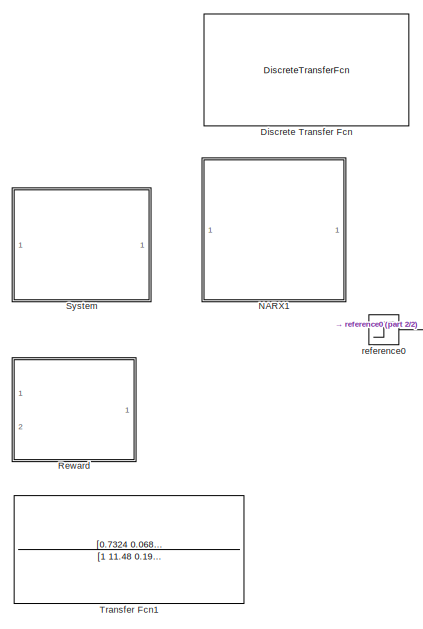
[diagram: root canvas - part 1/2, left side, full height]
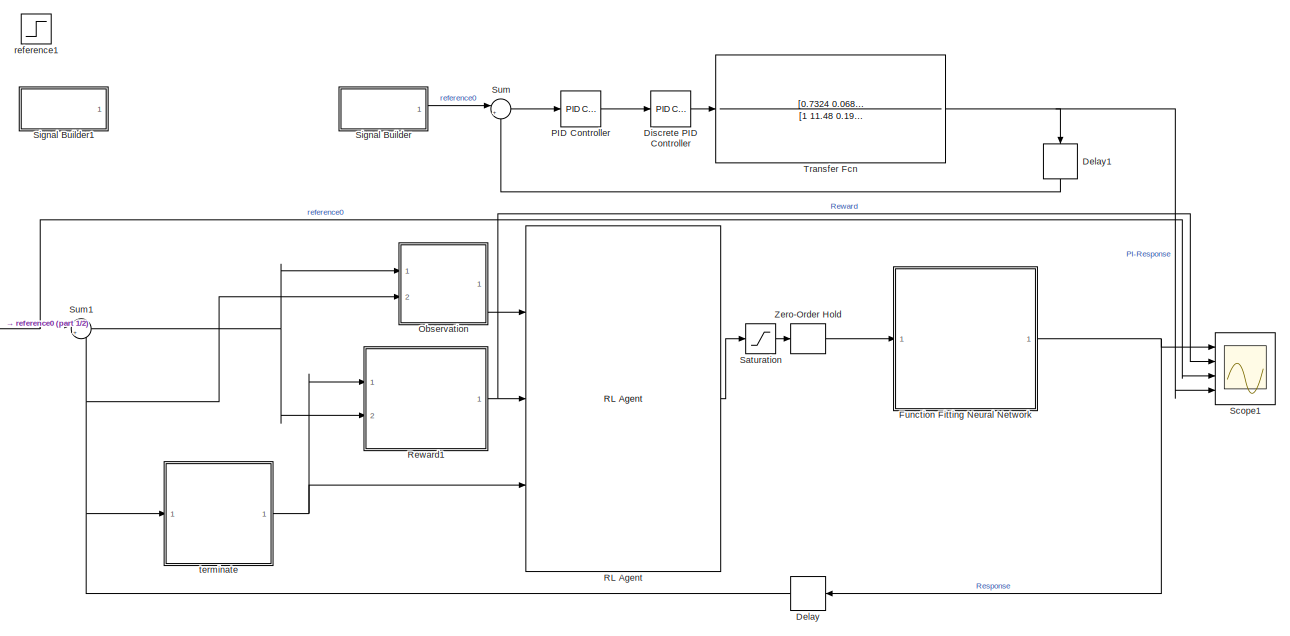
[diagram: root canvas - part 2/2, most of the canvas]
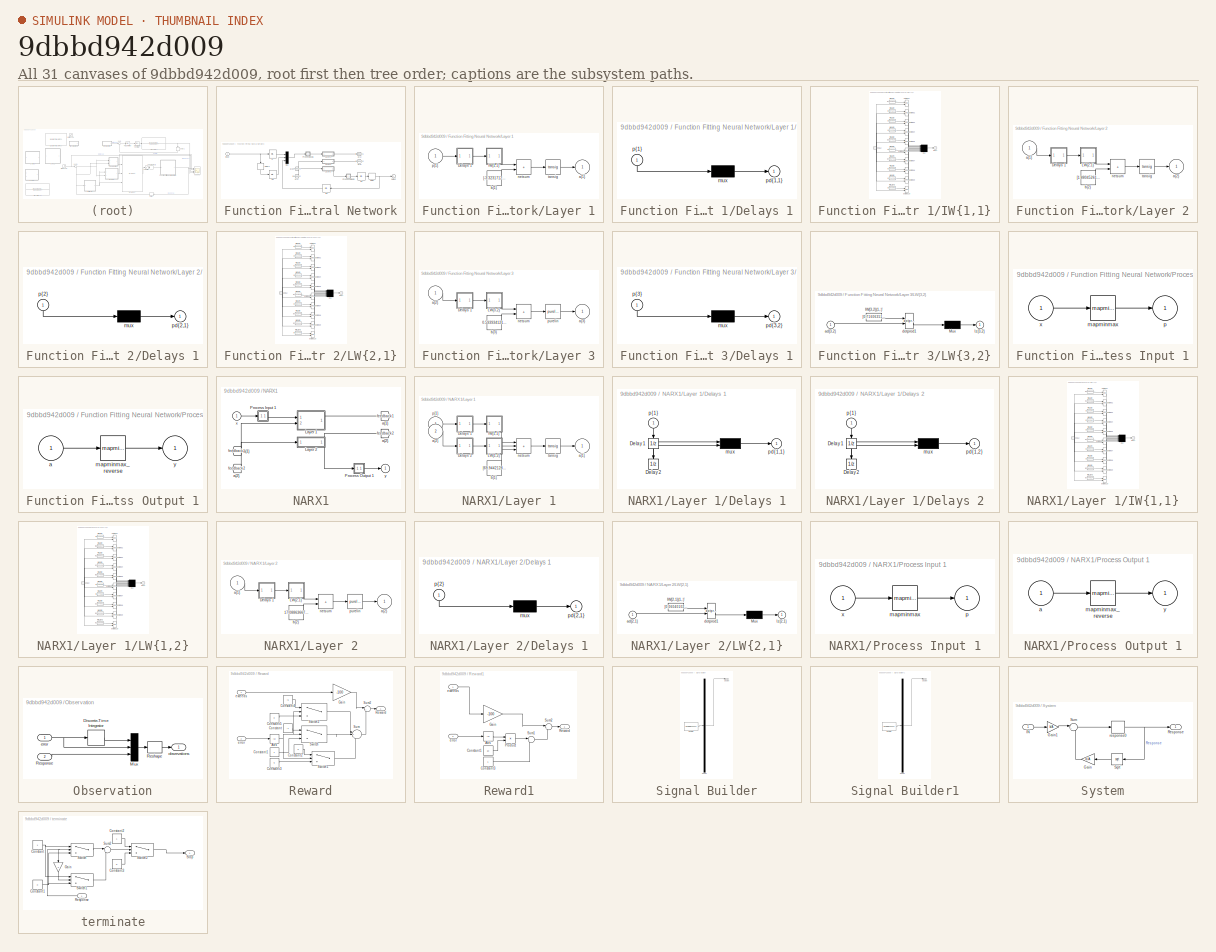
[diagram: thumbnail index - all 31 canvases of the model, root first then tree order]
MODEL slx_9dbbd942d009
KIND model
CONFIG AbsTol = auto
CONFIG EnableMultiTasking = off
CONFIG FixedStep = auto
CONFIG MaxStep = auto
CONFIG MinStep = auto
CONFIG RelTol = 1e-3
CONFIG SampleTimeConstraint = Unconstrained
CONFIG SolverName = VariableStepAuto
CONFIG StartTime = 0.0
CONFIG StopTime = 600
BLOCK [Delay] Delay
  Commented = through
  DelayLength = 1
  InitialCondition = 0
  InputPortMap = u0
  NameLocation = top
  Ports = [1, 1]
BLOCK [Delay] Delay1
  Commented = through
  DelayLength = 1
  InitialCondition = 0
  InputPortMap = u0
  NameLocation = left
  Ports = [1, 1]
BLOCK [Reference] Discrete PID Controller  REF=pid_lib/PID Controller
  Commented = through
  Ports = [1, 1]
  SourceBlock = pid_lib/PID Controller
  SourceProductBaseCode = SL
  SourceType = PID 1dof
BLOCK [DiscreteTransferFcn] Discrete Transfer Fcn
  Commented = on
  Denominator = [1 -1.998 0.9981]
  InputPortMap = u0
  Numerator = [0.2466 -0.4926 0.246]
  Ports = [1, 1]
BLOCK [SubSystem] Function Fitting Neural Network
  Ports = [1, 1]
  RequestExecContextInheritance = off
BLOCK [From] Function Fitting Neural Network/ a{1} 
  GotoTag = feedback1
BLOCK [From] Function Fitting Neural Network/ a{2} 
  GotoTag = feedback2
BLOCK [Delay] Function Fitting Neural Network/Delay
  DelayLength = 1
  InitialCondition = 0
  InputPortMap = u0
  Ports = [1, 1]
  SampleTime = 0.01
BLOCK [Delay] Function Fitting Neural Network/Delay1
  DelayLength = 1
  InitialCondition = 0
  InputPortMap = u0
  NameLocation = left
  Ports = [1, 1]
  SampleTime = 0.01
BLOCK [InitialCondition] Function Fitting Neural Network/IC
  Value = 0
BLOCK [InitialCondition] Function Fitting Neural Network/IC1
  Value = 0
BLOCK [InitialCondition] Function Fitting Neural Network/IC2
  Value = 0
BLOCK [InitialCondition] Function Fitting Neural Network/IC3
  Value = 0
BLOCK [Inport] Function Fitting Neural Network/Input
  PortDimensions = 1
  SampleTime = 0.01
BLOCK [SubSystem] Function Fitting Neural Network/Layer 1
  Ports = [1, 1]
  RequestExecContextInheritance = off
BLOCK [SubSystem] Function Fitting Neural Network/Layer 1/Delays 1
  Ports = [1, 1]
  RequestExecContextInheritance = off
BLOCK [Mux] Function Fitting Neural Network/Layer 1/Delays 1/mux
  Inputs = 1
  Ports = [1, 1]
BLOCK [Outport] Function Fitting Neural Network/Layer 1/Delays 1/pd{1,1}
BLOCK [Inport] Function Fitting Neural Network/Layer 1/Delays 1/p{1}
  NameLocation = left
  PortDimensions = 3
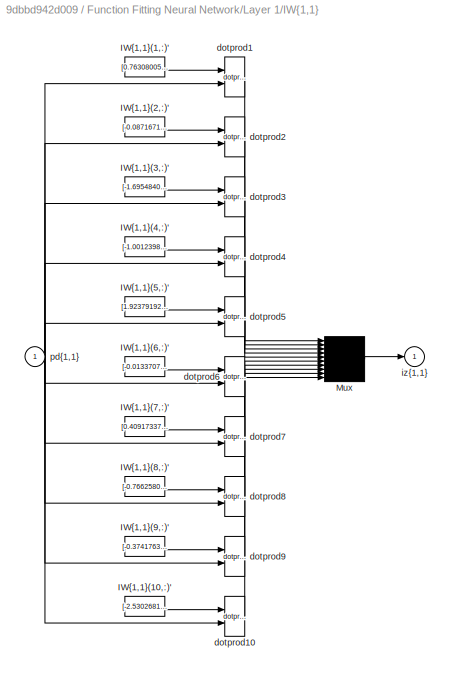
BLOCK [SubSystem] Function Fitting Neural Network/Layer 1/IW{1,1}
  Ports = [1, 1]
  RequestExecContextInheritance = off
BLOCK [Constant] Function Fitting Neural Network/Layer 1/IW{1,1}/IW{1,1}(1,:)'
  Value = [0.76308005848581805796726484913961030542850494384765625;2.331129027010572229983154102228581905364990234375;-1.219157590374229105378844906226731836795806884765625]
BLOCK [Constant] Function Fitting Neural Network/Layer 1/IW{1,1}/IW{1,1}(10,:)'
  Value = [-2.530268142481658433240454542101360857486724853515625;-0.175956236565314949604754701795172877609729766845703125;1.613170541124292700629894170560874044895172119140625]
BLOCK [Constant] Function Fitting Neural Network/Layer 1/IW{1,1}/IW{1,1}(2,:)'
  Value = [-0.0871671904955077236909488647143007256090641021728515625;2.734618928218120803563806475722230970859527587890625;-1.3565065948938954676350476802326738834381103515625]
BLOCK [Constant] Function Fitting Neural Network/Layer 1/IW{1,1}/IW{1,1}(3,:)'
  Value = [-1.6954840839414908604254605961614288389682769775390625;-1.579406776655639443873724303557537496089935302734375;0.17864859693195700440782047735410742461681365966796875]
BLOCK [Constant] Function Fitting Neural Network/Layer 1/IW{1,1}/IW{1,1}(4,:)'
  Value = [-1.0012398768876435983798955930978991091251373291015625;2.14863863294177104279469858738593757152557373046875;-2.0987808137777097527987280045635998249053955078125]
BLOCK [Constant] Function Fitting Neural Network/Layer 1/IW{1,1}/IW{1,1}(5,:)'
  Value = [1.9237919281852844388680523479706607758998870849609375;-1.7403728403510447808599792551831342279911041259765625;1.721653946918123789799892620067112147808074951171875]
BLOCK [Constant] Function Fitting Neural Network/Layer 1/IW{1,1}/IW{1,1}(6,:)'
  Value = [-0.013370784898292499554006695916541502811014652252197265625;-1.1387625806332095645956314911018125712871551513671875;2.749398164377189868190498600597493350505828857421875]
BLOCK [Constant] Function Fitting Neural Network/Layer 1/IW{1,1}/IW{1,1}(7,:)'
  Value = [0.409173374963759883815583862087805755436420440673828125;1.5683506735410503996064335296978242695331573486328125;2.2115795245398874868669736315496265888214111328125]
BLOCK [Constant] Function Fitting Neural Network/Layer 1/IW{1,1}/IW{1,1}(8,:)'
  Value = [-0.76625805888344877825346657118643634021282196044921875;1.4057415575137051089171791318221949040889739990234375;2.499082941115704503687311444082297384738922119140625]
BLOCK [Constant] Function Fitting Neural Network/Layer 1/IW{1,1}/IW{1,1}(9,:)'
  Value = [-0.37417630130996137882704033472691662609577178955078125;1.677153534919636257427555392496287822723388671875;2.426733731128155824308123555965721607208251953125]
BLOCK [Mux] Function Fitting Neural Network/Layer 1/IW{1,1}/Mux
  Inputs = 10
  Ports = [10, 1]
BLOCK [Reference] Function Fitting Neural Network/Layer 1/IW{1,1}/dotprod1  REF=neural/Weight Functions/dotprod
  Ports = [2, 1]
  SourceBlock = neural/Weight Functions/dotprod
  SourceProductBaseCode = NN
  SourceType = DOTPROD
BLOCK [Reference] Function Fitting Neural Network/Layer 1/IW{1,1}/dotprod10  REF=neural/Weight Functions/dotprod
  Ports = [2, 1]
  SourceBlock = neural/Weight Functions/dotprod
  SourceProductBaseCode = NN
  SourceType = DOTPROD
BLOCK [Reference] Function Fitting Neural Network/Layer 1/IW{1,1}/dotprod2  REF=neural/Weight Functions/dotprod
  Ports = [2, 1]
  SourceBlock = neural/Weight Functions/dotprod
  SourceProductBaseCode = NN
  SourceType = DOTPROD
BLOCK [Reference] Function Fitting Neural Network/Layer 1/IW{1,1}/dotprod3  REF=neural/Weight Functions/dotprod
  Ports = [2, 1]
  SourceBlock = neural/Weight Functions/dotprod
  SourceProductBaseCode = NN
  SourceType = DOTPROD
BLOCK [Reference] Function Fitting Neural Network/Layer 1/IW{1,1}/dotprod4  REF=neural/Weight Functions/dotprod
  Ports = [2, 1]
  SourceBlock = neural/Weight Functions/dotprod
  SourceProductBaseCode = NN
  SourceType = DOTPROD
BLOCK [Reference] Function Fitting Neural Network/Layer 1/IW{1,1}/dotprod5  REF=neural/Weight Functions/dotprod
  Ports = [2, 1]
  SourceBlock = neural/Weight Functions/dotprod
  SourceProductBaseCode = NN
  SourceType = DOTPROD
BLOCK [Reference] Function Fitting Neural Network/Layer 1/IW{1,1}/dotprod6  REF=neural/Weight Functions/dotprod
  Ports = [2, 1]
  SourceBlock = neural/Weight Functions/dotprod
  SourceProductBaseCode = NN
  SourceType = DOTPROD
BLOCK [Reference] Function Fitting Neural Network/Layer 1/IW{1,1}/dotprod7  REF=neural/Weight Functions/dotprod
  Ports = [2, 1]
  SourceBlock = neural/Weight Functions/dotprod
  SourceProductBaseCode = NN
  SourceType = DOTPROD
BLOCK [Reference] Function Fitting Neural Network/Layer 1/IW{1,1}/dotprod8  REF=neural/Weight Functions/dotprod
  Ports = [2, 1]
  SourceBlock = neural/Weight Functions/dotprod
  SourceProductBaseCode = NN
  SourceType = DOTPROD
BLOCK [Reference] Function Fitting Neural Network/Layer 1/IW{1,1}/dotprod9  REF=neural/Weight Functions/dotprod
  Ports = [2, 1]
  SourceBlock = neural/Weight Functions/dotprod
  SourceProductBaseCode = NN
  SourceType = DOTPROD
BLOCK [Outport] Function Fitting Neural Network/Layer 1/IW{1,1}/iz{1,1}
BLOCK [Inport] Function Fitting Neural Network/Layer 1/IW{1,1}/pd{1,1}
  PortDimensions = 3
BLOCK [Outport] Function Fitting Neural Network/Layer 1/a{1}
  InitialOutput = [0;0;0;0;0;0;0;0;0;0]
BLOCK [Constant] Function Fitting Neural Network/Layer 1/b{1}
  Value = [-3.32317120964137924232773002586327493190765380859375;2.2446469778311541887205748935230076313018798828125;1.950955147266907108161149153602309525012969970703125;0.8095038230191542449887265320285223424434661865234375;-0.7611095009019883672607420521671883761882781982421875;0.07852743333964208594100142590832547284662723541259765625;0.88425621149313038404926601288025267422199249267578125;-1.4713434644...<+149ch>
BLOCK [Sum] Function Fitting Neural Network/Layer 1/netsum
  IconShape = rectangular
  InputSameDT = on
  Inputs = 2
  OutDataTypeStr = Inherit: Same as first input
  Ports = [2, 1]
  SaturateOnIntegerOverflow = on
BLOCK [Inport] Function Fitting Neural Network/Layer 1/p{1}
  PortDimensions = 3
BLOCK [Reference] Function Fitting Neural Network/Layer 1/tansig  REF=neural/Transfer Functions/tansig
  Ports = [1, 1]
  SourceBlock = neural/Transfer Functions/tansig
  SourceProductBaseCode = NN
  SourceType = TANSIG
BLOCK [SubSystem] Function Fitting Neural Network/Layer 2
  Ports = [1, 1]
  RequestExecContextInheritance = off
BLOCK [SubSystem] Function Fitting Neural Network/Layer 2/Delays 1
  Ports = [1, 1]
  RequestExecContextInheritance = off
BLOCK [Mux] Function Fitting Neural Network/Layer 2/Delays 1/mux
  Inputs = 1
  Ports = [1, 1]
BLOCK [Outport] Function Fitting Neural Network/Layer 2/Delays 1/pd{2,1}
BLOCK [Inport] Function Fitting Neural Network/Layer 2/Delays 1/p{2}
  NameLocation = left
  PortDimensions = 10
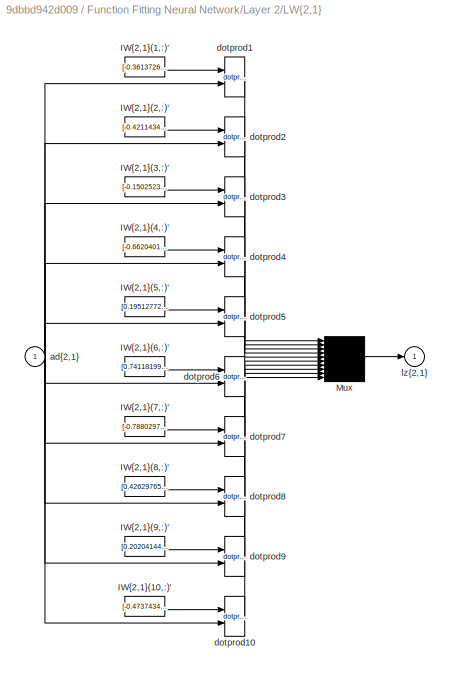
BLOCK [SubSystem] Function Fitting Neural Network/Layer 2/LW{2,1}
  Ports = [1, 1]
  RequestExecContextInheritance = off
BLOCK [Constant] Function Fitting Neural Network/Layer 2/LW{2,1}/IW{2,1}(1,:)'
  Value = [-0.361372677485969850952329807114438153803348541259765625;0.67719110819569772186099498867406509816646575927734375;1.19305429881698810135048915981315076351165771484375;0.63555020225388236809749287203885614871978759765625;-0.41725996480287930179287059218040667474269866943359375;-0.1842634835225147316162264132799464277923107147216796875;0.25927120905881528845071670730249024927616119384765625;0.32756...<+163ch>
BLOCK [Constant] Function Fitting Neural Network/Layer 2/LW{2,1}/IW{2,1}(10,:)'
  Value = [-0.473743425051872169007083357428200542926788330078125;-0.4817305058320331401233715951093472540378570556640625;-0.63004113616201795622373538208194077014923095703125;0.47607349036696311461724917535320855677127838134765625;-0.047544561604513042862851790459899348206818103790283203125;0.490769453529584065432089801106485538184642791748046875;0.4260205672105803476057417356059886515140533447265625;0.549...<+162ch>
BLOCK [Constant] Function Fitting Neural Network/Layer 2/LW{2,1}/IW{2,1}(2,:)'
  Value = [-0.42114345826561760954831470371573232114315032958984375;0.6057281376406269401968529564328491687774658203125;-0.61266683787086806400878913336782716214656829833984375;-0.433431431412366341415776105350232683122158050537109375;0.78080293809539202953828862519003450870513916015625;0.59030976767809961724964296081452630460262298583984375;0.2192688839724912241990750771947205066680908203125;-0.68226666314...<+153ch>
BLOCK [Constant] Function Fitting Neural Network/Layer 2/LW{2,1}/IW{2,1}(3,:)'
  Value = [-0.150252318040917709485171371852629818022251129150390625;-0.480883619268649920019953469818574376404285430908203125;0.94238709691332778195516084451810456812381744384765625;0.03550966489384276003615781291955499909818172454833984375;0.7300788364290979881587873023818247020244598388671875;0.1176216402484356604585258310180506668984889984130859375;-0.401744634761386887333856066106818616390228271484375;...<+168ch>
BLOCK [Constant] Function Fitting Neural Network/Layer 2/LW{2,1}/IW{2,1}(4,:)'
  Value = [-0.66204014823959556057531017358996905386447906494140625;-0.48914851415149429580964124397723935544490814208984375;-0.40217675618992376751492656694608740508556365966796875;1.051642374679273128634804379544220864772796630859375;0.93642459241617237442056875806883908808231353759765625;-0.288796721395234434748289231720264069736003875732421875;-1.0701628055197514033380912223947234451770782470703125;0.59...<+168ch>
BLOCK [Constant] Function Fitting Neural Network/Layer 2/LW{2,1}/IW{2,1}(5,:)'
  Value = [0.195127724074421582400873376172967255115509033203125;-0.205220306502168436946220708705368451774120330810546875;-0.48311911353640935029574166037491522729396820068359375;0.5038681928501731466241153611917980015277862548828125;-0.287889835010906980361511386945494450628757476806640625;-0.36391885696840997610479462309740483760833740234375;0.1340510091504848733112709169290610589087009429931640625;-0.24...<+166ch>
BLOCK [Constant] Function Fitting Neural Network/Layer 2/LW{2,1}/IW{2,1}(6,:)'
  Value = [0.74118199691908082105129551564459688961505889892578125;0.438439117883960560728695554644218645989894866943359375;0.43983092511804022795018909164355136454105377197265625;-0.5046640580805912268402835252345539629459381103515625;-0.44614783400604840490899505311972461640834808349609375;1.17282633451863471663045856985263526439666748046875;0.7000716784095974976054321814444847404956817626953125;-0.821314...<+159ch>
BLOCK [Constant] Function Fitting Neural Network/Layer 2/LW{2,1}/IW{2,1}(7,:)'
  Value = [-0.788029711880435801418798291706480085849761962890625;-0.046624773853757579822332246521909837611019611358642578125;0.63756488409840350595203517514164559543132781982421875;0.36915016330318672910237864925875328481197357177734375;0.3165324469049248801155727051082067191600799560546875;0.93369756315451457595600004424341022968292236328125;-0.13883436686219863265279172992450185120105743408203125;-0.265...<+162ch>
BLOCK [Constant] Function Fitting Neural Network/Layer 2/LW{2,1}/IW{2,1}(8,:)'
  Value = [0.42629765884171122447554580503492616117000579833984375;-0.65802845872813586769467519843601621687412261962890625;-0.489615664581000864519211290826206095516681671142578125;-0.81649347865293775416972721359343267977237701416015625;1.17060755180161546462613841868005692958831787109375;0.32850553846790553347290142482961528003215789794921875;0.07068889799727122447148275341533008031547069549560546875;-0....<+167ch>
BLOCK [Constant] Function Fitting Neural Network/Layer 2/LW{2,1}/IW{2,1}(9,:)'
  Value = [0.202041442808746862791480225496343336999416351318359375;0.65598328234685288062877361880964599549770355224609375;0.709897337672340089653744144015945494174957275390625;-0.71718003247800277133450208566500805318355560302734375;0.1636167709903677547345068887807428836822509765625;0.6048789823356852668467809053254313766956329345703125;0.1563035293008135095949029391704243607819080352783203125;-0.7857909...<+161ch>
BLOCK [Mux] Function Fitting Neural Network/Layer 2/LW{2,1}/Mux
  Inputs = 10
  Ports = [10, 1]
BLOCK [Inport] Function Fitting Neural Network/Layer 2/LW{2,1}/ad{2,1}
  PortDimensions = 10
BLOCK [Reference] Function Fitting Neural Network/Layer 2/LW{2,1}/dotprod1  REF=neural/Weight Functions/dotprod
  Ports = [2, 1]
  SourceBlock = neural/Weight Functions/dotprod
  SourceProductBaseCode = NN
  SourceType = DOTPROD
BLOCK [Reference] Function Fitting Neural Network/Layer 2/LW{2,1}/dotprod10  REF=neural/Weight Functions/dotprod
  Ports = [2, 1]
  SourceBlock = neural/Weight Functions/dotprod
  SourceProductBaseCode = NN
  SourceType = DOTPROD
BLOCK [Reference] Function Fitting Neural Network/Layer 2/LW{2,1}/dotprod2  REF=neural/Weight Functions/dotprod
  Ports = [2, 1]
  SourceBlock = neural/Weight Functions/dotprod
  SourceProductBaseCode = NN
  SourceType = DOTPROD
BLOCK [Reference] Function Fitting Neural Network/Layer 2/LW{2,1}/dotprod3  REF=neural/Weight Functions/dotprod
  Ports = [2, 1]
  SourceBlock = neural/Weight Functions/dotprod
  SourceProductBaseCode = NN
  SourceType = DOTPROD
BLOCK [Reference] Function Fitting Neural Network/Layer 2/LW{2,1}/dotprod4  REF=neural/Weight Functions/dotprod
  Ports = [2, 1]
  SourceBlock = neural/Weight Functions/dotprod
  SourceProductBaseCode = NN
  SourceType = DOTPROD
BLOCK [Reference] Function Fitting Neural Network/Layer 2/LW{2,1}/dotprod5  REF=neural/Weight Functions/dotprod
  Ports = [2, 1]
  SourceBlock = neural/Weight Functions/dotprod
  SourceProductBaseCode = NN
  SourceType = DOTPROD
BLOCK [Reference] Function Fitting Neural Network/Layer 2/LW{2,1}/dotprod6  REF=neural/Weight Functions/dotprod
  Ports = [2, 1]
  SourceBlock = neural/Weight Functions/dotprod
  SourceProductBaseCode = NN
  SourceType = DOTPROD
BLOCK [Reference] Function Fitting Neural Network/Layer 2/LW{2,1}/dotprod7  REF=neural/Weight Functions/dotprod
  Ports = [2, 1]
  SourceBlock = neural/Weight Functions/dotprod
  SourceProductBaseCode = NN
  SourceType = DOTPROD
BLOCK [Reference] Function Fitting Neural Network/Layer 2/LW{2,1}/dotprod8  REF=neural/Weight Functions/dotprod
  Ports = [2, 1]
  SourceBlock = neural/Weight Functions/dotprod
  SourceProductBaseCode = NN
  SourceType = DOTPROD
BLOCK [Reference] Function Fitting Neural Network/Layer 2/LW{2,1}/dotprod9  REF=neural/Weight Functions/dotprod
  Ports = [2, 1]
  SourceBlock = neural/Weight Functions/dotprod
  SourceProductBaseCode = NN
  SourceType = DOTPROD
BLOCK [Outport] Function Fitting Neural Network/Layer 2/LW{2,1}/lz{2,1}
BLOCK [Inport] Function Fitting Neural Network/Layer 2/a{1} 
  PortDimensions = 10
BLOCK [Outport] Function Fitting Neural Network/Layer 2/a{2}
  InitialOutput = [0;0;0;0;0;0;0;0;0;0]
BLOCK [Constant] Function Fitting Neural Network/Layer 2/b{2}
  Value = [1.8804526134724282027121944338432513177394866943359375;1.3205349681522078331141756279976107180118560791015625;0.9753787988005970799321175945806317031383514404296875;0.5672657615136900144392484435229562222957611083984375;-0.210322896549077598127297505925525911152362823486328125;0.1358507638572668818621735908891423605382442474365234375;-0.489729462581783570040983022408909164369106292724609375;0.797...<+162ch>
BLOCK [Sum] Function Fitting Neural Network/Layer 2/netsum
  IconShape = rectangular
  InputSameDT = on
  Inputs = 2
  OutDataTypeStr = Inherit: Same as first input
  Ports = [2, 1]
  SaturateOnIntegerOverflow = on
BLOCK [Reference] Function Fitting Neural Network/Layer 2/tansig  REF=neural/Transfer Functions/tansig
  Ports = [1, 1]
  SourceBlock = neural/Transfer Functions/tansig
  SourceProductBaseCode = NN
  SourceType = TANSIG
BLOCK [SubSystem] Function Fitting Neural Network/Layer 3
  Ports = [1, 1]
  RequestExecContextInheritance = off
BLOCK [SubSystem] Function Fitting Neural Network/Layer 3/Delays 1
  Ports = [1, 1]
  RequestExecContextInheritance = off
BLOCK [Mux] Function Fitting Neural Network/Layer 3/Delays 1/mux
  Inputs = 1
  Ports = [1, 1]
BLOCK [Outport] Function Fitting Neural Network/Layer 3/Delays 1/pd{3,2}
BLOCK [Inport] Function Fitting Neural Network/Layer 3/Delays 1/p{3}
  NameLocation = left
  PortDimensions = 10
BLOCK [SubSystem] Function Fitting Neural Network/Layer 3/LW{3,2}
  Ports = [1, 1]
  RequestExecContextInheritance = off
BLOCK [Constant] Function Fitting Neural Network/Layer 3/LW{3,2}/IW{3,2}(1,:)'
  Value = [0.71606351843164384174400538540794514119625091552734375;-0.94002037830654916472639115454512648284435272216796875;-0.08063993282818197882999555758942733518779277801513671875;0.28658478434985534821777264369302429258823394775390625;-0.265830819598041834250778947534854523837566375732421875;0.50160638320664230338508104978245683014392852783203125;-0.39883762940942829589019424929574597626924514770507812...<+177ch>
BLOCK [Mux] Function Fitting Neural Network/Layer 3/LW{3,2}/Mux
  Inputs = 1
  Ports = [1, 1]
BLOCK [Inport] Function Fitting Neural Network/Layer 3/LW{3,2}/ad{3,2}
  PortDimensions = 10
BLOCK [Reference] Function Fitting Neural Network/Layer 3/LW{3,2}/dotprod1  REF=neural/Weight Functions/dotprod
  Ports = [2, 1]
  SourceBlock = neural/Weight Functions/dotprod
  SourceProductBaseCode = NN
  SourceType = DOTPROD
BLOCK [Outport] Function Fitting Neural Network/Layer 3/LW{3,2}/lz{3,2}
BLOCK [Inport] Function Fitting Neural Network/Layer 3/a{2} 
  PortDimensions = 10
BLOCK [Outport] Function Fitting Neural Network/Layer 3/a{3}
  InitialOutput = 0
BLOCK [Constant] Function Fitting Neural Network/Layer 3/b{3}
  Value = 0.5939341216611018214877049103961326181888580322265625
BLOCK [Sum] Function Fitting Neural Network/Layer 3/netsum
  IconShape = rectangular
  InputSameDT = on
  Inputs = 2
  OutDataTypeStr = Inherit: Same as first input
  Ports = [2, 1]
  SaturateOnIntegerOverflow = on
BLOCK [Reference] Function Fitting Neural Network/Layer 3/purelin  REF=neural/Transfer Functions/purelin
  Ports = [1, 1]
  SourceBlock = neural/Transfer Functions/purelin
  SourceProductBaseCode = NN
  SourceType = PURELIN
BLOCK [Mux] Function Fitting Neural Network/Mux
  DisplayOption = bar
  Inputs = 3
  Ports = [3, 1]
BLOCK [Outport] Function Fitting Neural Network/Output
  InitialOutput = 0
BLOCK [SubSystem] Function Fitting Neural Network/Process Input 1
  Ports = [1, 1]
  RequestExecContextInheritance = off
BLOCK [Reference] Function Fitting Neural Network/Process Input 1/mapminmax  REF=neural/Processing Functions/mapminmax
  Ports = [1, 1]
  SourceBlock = neural/Processing Functions/mapminmax
  SourceProductBaseCode = NN
  SourceType = MAPMINMAX Preprocess
BLOCK [Outport] Function Fitting Neural Network/Process Input 1/p
  PortDimensions = 3
BLOCK [Inport] Function Fitting Neural Network/Process Input 1/x
  PortDimensions = 3
BLOCK [SubSystem] Function Fitting Neural Network/Process Output 1
  Ports = [1, 1]
  RequestExecContextInheritance = off
BLOCK [Inport] Function Fitting Neural Network/Process Output 1/a
  PortDimensions = 1
BLOCK [Reference] Function Fitting Neural Network/Process Output 1/mapminmax_reverse  REF=neural/Processing Functions/mapminmax_reverse
  Ports = [1, 1]
  SourceBlock = neural/Processing Functions/mapminmax_reverse
  SourceProductBaseCode = NN
  SourceType = MAPMINMAX Reverse Process
BLOCK [Outport] Function Fitting Neural Network/Process Output 1/y
  PortDimensions = 1
BLOCK [Goto] Function Fitting Neural Network/a{1}
  GotoTag = feedback1
BLOCK [Goto] Function Fitting Neural Network/a{2}
  GotoTag = feedback2
BLOCK [SubSystem] NARX1
  Commented = on
  Ports = [1, 1]
  RequestExecContextInheritance = off
BLOCK [From] NARX1/ a{1} 
  GotoTag = feedback1
BLOCK [From] NARX1/ a{2} 
  GotoTag = feedback2
BLOCK [SubSystem] NARX1/Layer 1
  Ports = [2, 1]
  RequestExecContextInheritance = off
BLOCK [SubSystem] NARX1/Layer 1/Delays 1
  Ports = [1, 1]
  RequestExecContextInheritance = off
BLOCK [UnitDelay] NARX1/Layer 1/Delays 1/Delay 1
  InitialCondition = pi_input_1_delayed_1
  NameLocation = left
  SampleTime = 0.01
BLOCK [UnitDelay] NARX1/Layer 1/Delays 1/Delay 2
  InitialCondition = pi_input_1_delayed_2
  NameLocation = left
  SampleTime = 0.01
BLOCK [Mux] NARX1/Layer 1/Delays 1/mux
  Inputs = 2
  Ports = [2, 1]
BLOCK [Outport] NARX1/Layer 1/Delays 1/pd{1,1}
BLOCK [Inport] NARX1/Layer 1/Delays 1/p{1}
  NameLocation = left
  PortDimensions = 1
  SampleTime = 0.01
BLOCK [SubSystem] NARX1/Layer 1/Delays 2
  Ports = [1, 1]
  RequestExecContextInheritance = off
BLOCK [UnitDelay] NARX1/Layer 1/Delays 2/Delay 1
  InitialCondition = ai_layer_2_delayed_1
  NameLocation = left
  SampleTime = 0.01
BLOCK [UnitDelay] NARX1/Layer 1/Delays 2/Delay 2
  InitialCondition = ai_layer_2_delayed_2
  NameLocation = left
  SampleTime = 0.01
BLOCK [Mux] NARX1/Layer 1/Delays 2/mux
  Inputs = 2
  Ports = [2, 1]
BLOCK [Outport] NARX1/Layer 1/Delays 2/pd{1,2}
BLOCK [Inport] NARX1/Layer 1/Delays 2/p{1}
  NameLocation = left
  PortDimensions = 1
  SampleTime = 0.01
BLOCK [SubSystem] NARX1/Layer 1/IW{1,1}
  Ports = [1, 1]
  RequestExecContextInheritance = off
BLOCK [Constant] NARX1/Layer 1/IW{1,1}/IW{1,1}(1,:)'
  Value = [29.03903226635674883482352015562355518341064453125;41.44948441657512461233636713586747646331787109375]
BLOCK [Constant] NARX1/Layer 1/IW{1,1}/IW{1,1}(10,:)'
  Value = [0.7675824761955245545408388352370820939540863037109375;-1.1687055017099490239473880137666128575801849365234375]
BLOCK [Constant] NARX1/Layer 1/IW{1,1}/IW{1,1}(2,:)'
  Value = [0.2390355624880793061759476358929532580077648162841796875;-0.431926298184111823186270839869393967092037200927734375]
BLOCK [Constant] NARX1/Layer 1/IW{1,1}/IW{1,1}(3,:)'
  Value = [-10.161651163492148697287120739929378032684326171875;11.3341168636576146155903188628144562244415283203125]
BLOCK [Constant] NARX1/Layer 1/IW{1,1}/IW{1,1}(4,:)'
  Value = [-21.302867640969935791872558183968067169189453125;25.13980283393106418543538893572986125946044921875]
BLOCK [Constant] NARX1/Layer 1/IW{1,1}/IW{1,1}(5,:)'
  Value = [-19.303986729564780233658893848769366741180419921875;132.186706804042984231273294426500797271728515625]
BLOCK [Constant] NARX1/Layer 1/IW{1,1}/IW{1,1}(6,:)'
  Value = [1.24605412948472338285910154809243977069854736328125;-1.4330989075176490121776851083268411457538604736328125]
BLOCK [Constant] NARX1/Layer 1/IW{1,1}/IW{1,1}(7,:)'
  Value = [-0.1399246287369722840931984819690114818513393402099609375;0.31427409306866971316907211075886152684688568115234375]
BLOCK [Constant] NARX1/Layer 1/IW{1,1}/IW{1,1}(8,:)'
  Value = [-19.325065952917437783753484836779534816741943359375;22.96748770829365327017512754537165164947509765625]
BLOCK [Constant] NARX1/Layer 1/IW{1,1}/IW{1,1}(9,:)'
  Value = [9.3486555172812675351678990409709513187408447265625;-7.227440486947561026909170323051512241363525390625]
BLOCK [Mux] NARX1/Layer 1/IW{1,1}/Mux
  Inputs = 10
  Ports = [10, 1]
BLOCK [Reference] NARX1/Layer 1/IW{1,1}/dotprod1  REF=neural/Weight Functions/dotprod
  Ports = [2, 1]
  SourceBlock = neural/Weight Functions/dotprod
  SourceProductBaseCode = NN
  SourceType = DOTPROD
BLOCK [Reference] NARX1/Layer 1/IW{1,1}/dotprod10  REF=neural/Weight Functions/dotprod
  Ports = [2, 1]
  SourceBlock = neural/Weight Functions/dotprod
  SourceProductBaseCode = NN
  SourceType = DOTPROD
BLOCK [Reference] NARX1/Layer 1/IW{1,1}/dotprod2  REF=neural/Weight Functions/dotprod
  Ports = [2, 1]
  SourceBlock = neural/Weight Functions/dotprod
  SourceProductBaseCode = NN
  SourceType = DOTPROD
BLOCK [Reference] NARX1/Layer 1/IW{1,1}/dotprod3  REF=neural/Weight Functions/dotprod
  Ports = [2, 1]
  SourceBlock = neural/Weight Functions/dotprod
  SourceProductBaseCode = NN
  SourceType = DOTPROD
BLOCK [Reference] NARX1/Layer 1/IW{1,1}/dotprod4  REF=neural/Weight Functions/dotprod
  Ports = [2, 1]
  SourceBlock = neural/Weight Functions/dotprod
  SourceProductBaseCode = NN
  SourceType = DOTPROD
BLOCK [Reference] NARX1/Layer 1/IW{1,1}/dotprod5  REF=neural/Weight Functions/dotprod
  Ports = [2, 1]
  SourceBlock = neural/Weight Functions/dotprod
  SourceProductBaseCode = NN
  SourceType = DOTPROD
BLOCK [Reference] NARX1/Layer 1/IW{1,1}/dotprod6  REF=neural/Weight Functions/dotprod
  Ports = [2, 1]
  SourceBlock = neural/Weight Functions/dotprod
  SourceProductBaseCode = NN
  SourceType = DOTPROD
BLOCK [Reference] NARX1/Layer 1/IW{1,1}/dotprod7  REF=neural/Weight Functions/dotprod
  Ports = [2, 1]
  SourceBlock = neural/Weight Functions/dotprod
  SourceProductBaseCode = NN
  SourceType = DOTPROD
BLOCK [Reference] NARX1/Layer 1/IW{1,1}/dotprod8  REF=neural/Weight Functions/dotprod
  Ports = [2, 1]
  SourceBlock = neural/Weight Functions/dotprod
  SourceProductBaseCode = NN
  SourceType = DOTPROD
BLOCK [Reference] NARX1/Layer 1/IW{1,1}/dotprod9  REF=neural/Weight Functions/dotprod
  Ports = [2, 1]
  SourceBlock = neural/Weight Functions/dotprod
  SourceProductBaseCode = NN
  SourceType = DOTPROD
BLOCK [Outport] NARX1/Layer 1/IW{1,1}/iz{1,1}
BLOCK [Inport] NARX1/Layer 1/IW{1,1}/pd{1,1}
  PortDimensions = 2
  SampleTime = 0.01
BLOCK [SubSystem] NARX1/Layer 1/LW{1,2}
  Ports = [1, 1]
  RequestExecContextInheritance = off
BLOCK [Constant] NARX1/Layer 1/LW{1,2}/IW{1,2}(1,:)'
  Value = [-90.0760341859439535028286627493798732757568359375;-15.892527945592174631883608526550233364105224609375]
BLOCK [Constant] NARX1/Layer 1/LW{1,2}/IW{1,2}(10,:)'
  Value = [0.2266065402753516810907541412234422750771045684814453125;0.357905025155156042426796147992718033492565155029296875]
BLOCK [Constant] NARX1/Layer 1/LW{1,2}/IW{1,2}(2,:)'
  Value = [8.8986824634599628325304365716874599456787109375;-3.3192095512917632049720850773155689239501953125]
BLOCK [Constant] NARX1/Layer 1/LW{1,2}/IW{1,2}(3,:)'
  Value = [0.296553169966616625430333442636765539646148681640625;-11.441003871500516453352247481234371662139892578125]
BLOCK [Constant] NARX1/Layer 1/LW{1,2}/IW{1,2}(4,:)'
  Value = [1.250316947725770067023631781921721994876861572265625;0.10735755221568699102618893448379822075366973876953125]
BLOCK [Constant] NARX1/Layer 1/LW{1,2}/IW{1,2}(5,:)'
  Value = [8.5314595868222955488135994528420269489288330078125;-39.350148410760766637395136058330535888671875]
BLOCK [Constant] NARX1/Layer 1/LW{1,2}/IW{1,2}(6,:)'
  Value = [-0.0088389681333127766149626580727272084914147853851318359375;3.140775185723360340972476478782482445240020751953125]
BLOCK [Constant] NARX1/Layer 1/LW{1,2}/IW{1,2}(7,:)'
  Value = [-8.6774582699907316651888322667218744754791259765625;3.255085657986370062388914448092691600322723388671875]
BLOCK [Constant] NARX1/Layer 1/LW{1,2}/IW{1,2}(8,:)'
  Value = [1.3877601550971998545236374411615543067455291748046875;0.043093466123134131773309007940042647533118724822998046875]
BLOCK [Constant] NARX1/Layer 1/LW{1,2}/IW{1,2}(9,:)'
  Value = [6.60602924824950132887124709668569266796112060546875;-5.2432289840964454441518682870082557201385498046875]
BLOCK [Mux] NARX1/Layer 1/LW{1,2}/Mux
  Inputs = 10
  Ports = [10, 1]
BLOCK [Inport] NARX1/Layer 1/LW{1,2}/ad{1,2}
  PortDimensions = 2
  SampleTime = 0.01
BLOCK [Reference] NARX1/Layer 1/LW{1,2}/dotprod1  REF=neural/Weight Functions/dotprod
  Ports = [2, 1]
  SourceBlock = neural/Weight Functions/dotprod
  SourceProductBaseCode = NN
  SourceType = DOTPROD
BLOCK [Reference] NARX1/Layer 1/LW{1,2}/dotprod10  REF=neural/Weight Functions/dotprod
  Ports = [2, 1]
  SourceBlock = neural/Weight Functions/dotprod
  SourceProductBaseCode = NN
  SourceType = DOTPROD
BLOCK [Reference] NARX1/Layer 1/LW{1,2}/dotprod2  REF=neural/Weight Functions/dotprod
  Ports = [2, 1]
  SourceBlock = neural/Weight Functions/dotprod
  SourceProductBaseCode = NN
  SourceType = DOTPROD
BLOCK [Reference] NARX1/Layer 1/LW{1,2}/dotprod3  REF=neural/Weight Functions/dotprod
  Ports = [2, 1]
  SourceBlock = neural/Weight Functions/dotprod
  SourceProductBaseCode = NN
  SourceType = DOTPROD
BLOCK [Reference] NARX1/Layer 1/LW{1,2}/dotprod4  REF=neural/Weight Functions/dotprod
  Ports = [2, 1]
  SourceBlock = neural/Weight Functions/dotprod
  SourceProductBaseCode = NN
  SourceType = DOTPROD
BLOCK [Reference] NARX1/Layer 1/LW{1,2}/dotprod5  REF=neural/Weight Functions/dotprod
  Ports = [2, 1]
  SourceBlock = neural/Weight Functions/dotprod
  SourceProductBaseCode = NN
  SourceType = DOTPROD
BLOCK [Reference] NARX1/Layer 1/LW{1,2}/dotprod6  REF=neural/Weight Functions/dotprod
  Ports = [2, 1]
  SourceBlock = neural/Weight Functions/dotprod
  SourceProductBaseCode = NN
  SourceType = DOTPROD
BLOCK [Reference] NARX1/Layer 1/LW{1,2}/dotprod7  REF=neural/Weight Functions/dotprod
  Ports = [2, 1]
  SourceBlock = neural/Weight Functions/dotprod
  SourceProductBaseCode = NN
  SourceType = DOTPROD
BLOCK [Reference] NARX1/Layer 1/LW{1,2}/dotprod8  REF=neural/Weight Functions/dotprod
  Ports = [2, 1]
  SourceBlock = neural/Weight Functions/dotprod
  SourceProductBaseCode = NN
  SourceType = DOTPROD
BLOCK [Reference] NARX1/Layer 1/LW{1,2}/dotprod9  REF=neural/Weight Functions/dotprod
  Ports = [2, 1]
  SourceBlock = neural/Weight Functions/dotprod
  SourceProductBaseCode = NN
  SourceType = DOTPROD
BLOCK [Outport] NARX1/Layer 1/LW{1,2}/lz{1,2}
BLOCK [Outport] NARX1/Layer 1/a{1}
  InitialOutput = [0;0;0;0;0;0;0;0;0;0]
BLOCK [Inport] NARX1/Layer 1/a{2} 
  Port = 2
  PortDimensions = 1
  SampleTime = 0.01
BLOCK [Constant] NARX1/Layer 1/b{1}
  Value = [69.94421289085806847651838324964046478271484375;2.35312501576970500849483869387768208980560302734375;-4.855903680023484270122935413382947444915771484375;-2.087801418825440347148969522095285356044769287109375;-32.77731708312310132669153972528874874114990234375;0.86910928202982240531326851851190440356731414794921875;-2.269983179006980211767086075269617140293121337890625;-1.9274601891979410428490382...<+131ch>
BLOCK [Sum] NARX1/Layer 1/netsum
  IconShape = rectangular
  InputSameDT = on
  Inputs = 3
  OutDataTypeStr = Inherit: Same as first input
  Ports = [3, 1]
  SaturateOnIntegerOverflow = on
BLOCK [Inport] NARX1/Layer 1/p{1}
  PortDimensions = 1
  SampleTime = 0.01
BLOCK [Reference] NARX1/Layer 1/tansig  REF=neural/Transfer Functions/tansig
  Ports = [1, 1]
  SourceBlock = neural/Transfer Functions/tansig
  SourceProductBaseCode = NN
  SourceType = TANSIG
BLOCK [SubSystem] NARX1/Layer 2
  Ports = [1, 1]
  RequestExecContextInheritance = off
BLOCK [SubSystem] NARX1/Layer 2/Delays 1
  Ports = [1, 1]
  RequestExecContextInheritance = off
BLOCK [Mux] NARX1/Layer 2/Delays 1/mux
  Inputs = 1
  Ports = [1, 1]
BLOCK [Outport] NARX1/Layer 2/Delays 1/pd{2,1}
BLOCK [Inport] NARX1/Layer 2/Delays 1/p{2}
  NameLocation = left
  PortDimensions = 10
  SampleTime = 0.01
BLOCK [SubSystem] NARX1/Layer 2/LW{2,1}
  Ports = [1, 1]
  RequestExecContextInheritance = off
BLOCK [Constant] NARX1/Layer 2/LW{2,1}/IW{2,1}(1,:)'
  Value = [0.060401023420810405484271399245699285529553890228271484375;-3.005077244429127159008885428193025290966033935546875;0.084753251289819642178002823129645548760890960693359375;-0.400988508564978030079828386078588664531707763671875;-0.015663048759543309051966986089610145427286624908447265625;0.178520711114695196375379282471840269863605499267578125;-3.023388300107930692917079795734025537967681884765625...<+164ch>
BLOCK [Mux] NARX1/Layer 2/LW{2,1}/Mux
  Inputs = 1
  Ports = [1, 1]
BLOCK [Inport] NARX1/Layer 2/LW{2,1}/ad{2,1}
  PortDimensions = 10
  SampleTime = 0.01
BLOCK [Reference] NARX1/Layer 2/LW{2,1}/dotprod1  REF=neural/Weight Functions/dotprod
  Ports = [2, 1]
  SourceBlock = neural/Weight Functions/dotprod
  SourceProductBaseCode = NN
  SourceType = DOTPROD
BLOCK [Outport] NARX1/Layer 2/LW{2,1}/lz{2,1}
BLOCK [Inport] NARX1/Layer 2/a{1} 
  PortDimensions = 10
  SampleTime = 0.01
BLOCK [Outport] NARX1/Layer 2/a{2}
  InitialOutput = 0
BLOCK [Constant] NARX1/Layer 2/b{2}
  Value = 17.088636675878664306083010160364210605621337890625
BLOCK [Sum] NARX1/Layer 2/netsum
  IconShape = rectangular
  InputSameDT = on
  Inputs = 2
  OutDataTypeStr = Inherit: Same as first input
  Ports = [2, 1]
  SaturateOnIntegerOverflow = on
BLOCK [Reference] NARX1/Layer 2/purelin  REF=neural/Transfer Functions/purelin
  Ports = [1, 1]
  SourceBlock = neural/Transfer Functions/purelin
  SourceProductBaseCode = NN
  SourceType = PURELIN
BLOCK [SubSystem] NARX1/Process Input 1
  Ports = [1, 1]
  RequestExecContextInheritance = off
BLOCK [Reference] NARX1/Process Input 1/mapminmax  REF=neural/Processing Functions/mapminmax
  Ports = [1, 1]
  SourceBlock = neural/Processing Functions/mapminmax
  SourceProductBaseCode = NN
  SourceType = MAPMINMAX Preprocess
BLOCK [Outport] NARX1/Process Input 1/p
  PortDimensions = 1
  SampleTime = 0.01
BLOCK [Inport] NARX1/Process Input 1/x
  PortDimensions = 1
  SampleTime = 0.01
BLOCK [SubSystem] NARX1/Process Output 1
  Ports = [1, 1]
  RequestExecContextInheritance = off
BLOCK [Inport] NARX1/Process Output 1/a
  PortDimensions = 1
  SampleTime = 0.01
BLOCK [Reference] NARX1/Process Output 1/mapminmax_reverse  REF=neural/Processing Functions/mapminmax_reverse
  Ports = [1, 1]
  SourceBlock = neural/Processing Functions/mapminmax_reverse
  SourceProductBaseCode = NN
  SourceType = MAPMINMAX Reverse Process
BLOCK [Outport] NARX1/Process Output 1/y
  PortDimensions = 1
  SampleTime = 0.01
BLOCK [Goto] NARX1/a{1}
  GotoTag = feedback1
BLOCK [Goto] NARX1/a{2}
  GotoTag = feedback2
BLOCK [Inport] NARX1/x
  PortDimensions = 1
  SampleTime = 0.01
BLOCK [Outport] NARX1/y
  InitialOutput = 0
BLOCK [SubSystem] Observation
  Ports = [2, 1]
  RequestExecContextInheritance = off
BLOCK [DiscreteIntegrator] Observation/Discrete-Time Integrator
  ICPrevOutput = DiscIntNeverNeededParam
  ICPrevScaledInput = DiscIntNeverNeededParam
  InitialConditionSetting = Auto
  Ports = [1, 1]
  SampleTime = Ts
BLOCK [Mux] Observation/Mux
  DisplayOption = bar
  Inputs = 3
  Ports = [3, 1]
BLOCK [Reshape] Observation/Reshape
  OutputDimensionality = Column vector (2-D)
  OutputDimensions = [3,1]
  Ports = [1, 1]
BLOCK [Inport] Observation/Response
  Port = 2
BLOCK [Inport] Observation/error
BLOCK [Outport] Observation/observations
BLOCK [Reference] PID Controller  REF=pid_lib/PID Controller
  Ports = [1, 1]
  SourceBlock = pid_lib/PID Controller
  SourceProductBaseCode = SL
  SourceType = PID 1dof
BLOCK [Reference] RL Agent  REF=rllib/RL Agent
  Ports = [3, 1]
  SourceBlock = rllib/RL Agent
  SourceProductBaseCode = RL
  SourceType = RL Agent
BLOCK [SubSystem] Reward
  Commented = on
  Ports = [2, 1]
  RequestExecContextInheritance = off
BLOCK [Abs] Reward/Abs
  SaturateOnIntegerOverflow = off
BLOCK [Constant] Reward/Constant
  SampleTime = Ts
  Value = -1
BLOCK [Constant] Reward/Constant1
  SampleTime = Ts
BLOCK [Constant] Reward/Constant2
  SampleTime = Ts
  Value = 0
BLOCK [Constant] Reward/Constant3
  SampleTime = Ts
  Value = 9
BLOCK [Constant] Reward/Constant4
  SampleTime = Ts
  Value = -5
BLOCK [Constant] Reward/Constant5
  SampleTime = Ts
  Value = 0
BLOCK [Gain] Reward/Gain
  Gain = -100
BLOCK [Outport] Reward/Reward
BLOCK [Sum] Reward/Sum
  Inputs = |+|+|+
  Ports = [3, 1]
BLOCK [Sum] Reward/Sum2
  Inputs = |++
  Ports = [2, 1]
BLOCK [Switch] Reward/Switch
  InputSameDT = off
  SaturateOnIntegerOverflow = off
  Threshold = 0.1
BLOCK [Switch] Reward/Switch1
  InputSameDT = off
  SaturateOnIntegerOverflow = off
  Threshold = 0.01
BLOCK [Switch] Reward/Switch2
  InputSameDT = off
  SaturateOnIntegerOverflow = off
  Threshold = 0.2
BLOCK [Inport] Reward/error
  Port = 2
BLOCK [Inport] Reward/exceeds
BLOCK [SubSystem] Reward1
  Ports = [2, 1]
  RequestExecContextInheritance = off
BLOCK [Abs] Reward1/Abs
  SaturateOnIntegerOverflow = off
BLOCK [Constant] Reward1/Constant1
  SampleTime = Ts
  Value = 10
BLOCK [Constant] Reward1/Constant3
  SampleTime = Ts
BLOCK [Gain] Reward1/Gain
  Gain = -100
BLOCK [Product] Reward1/Product
  Ports = [2, 1]
BLOCK [Outport] Reward1/Reward
BLOCK [Sum] Reward1/Sum1
  Inputs = |-+
  Ports = [2, 1]
BLOCK [Sum] Reward1/Sum2
  Inputs = |++
  Ports = [2, 1]
BLOCK [Inport] Reward1/error
  Port = 2
BLOCK [Inport] Reward1/exceeds
BLOCK [Saturate] Saturation
  LowerLimit = 0
  UpperLimit = 5
BLOCK [Scope] Scope1
  Floating = off
  NumInputPorts = 4
  Ports = [4]
  ScopeSpecificationString = Simulink.scopes.TimeScopeBlockCfg('CurrentConfiguration', extmgr.ConfigurationSet(extmgr.Configuration('Core','General UI',true,'FigureColor',[1 1 1]),extmgr.Configuration('Core','Source UI',true),extmgr.Configuration('Sources','WiredSimulink',true,'DataLoggingVariableName','ScopeData1'),extmgr.Configuration('Visuals','Time Domain',true,'SerializedDisplays',{struct('MinYLimReal','-0.10899','MaxYLi...<+4174ch>
BLOCK [SubSystem] Signal Builder
  ClipboardFcn = sigbuilder_block('clipboard');
  CloseFcn = sigbuilder_block('close');
  ContinueFcn = sigbuilder_block('continue');
  CopyFcn = sigbuilder_block('copy');
  DeleteFcn = sigbuilder_block('delete');
  LoadFcn = sigbuilder_block('load');
  MaskHideContents = on
  ModelCloseFcn = sigbuilder_block('modelClose');
  NameChangeFcn = sigbuilder_block('namechange');
  OpenFcn = sigbuilder_block('open',[437.25 199.5 700.5 399.75 ]);
  PauseFcn = sigbuilder_block('pause');
  Ports = [0, 1]
  PreSaveFcn = sigbuilder_block('preSave');
  RequestExecContextInheritance = off
  StartFcn = sigbuilder_block('start');
  StopFcn = sigbuilder_block('stop');
  Tag = STV Subsys
BLOCK [Demux] Signal Builder/Demux
  DisplayOption = none
  Outputs = 1
  Ports = [1, 1]
  Tag = STV Demux
BLOCK [FromWorkspace] Signal Builder/FromWs
  Tag = STV FromWs
  VariableName = tuvar
BLOCK [Outport] Signal Builder/Source
  Tag = STV Outport
BLOCK [SubSystem] Signal Builder1
  ClipboardFcn = sigbuilder_block('clipboard');
  CloseFcn = sigbuilder_block('close');
  Commented = on
  ContinueFcn = sigbuilder_block('continue');
  CopyFcn = sigbuilder_block('copy');
  DeleteFcn = sigbuilder_block('delete');
  LoadFcn = sigbuilder_block('load');
  MaskHideContents = on
  ModelCloseFcn = sigbuilder_block('modelClose');
  NameChangeFcn = sigbuilder_block('namechange');
  OpenFcn = sigbuilder_block('open',[437.25 199.5 700.5 399.75 ]);
  PauseFcn = sigbuilder_block('pause');
  Ports = [0, 1]
  PreSaveFcn = sigbuilder_block('preSave');
  RequestExecContextInheritance = off
  StartFcn = sigbuilder_block('start');
  StopFcn = sigbuilder_block('stop');
  Tag = STV Subsys
BLOCK [Demux] Signal Builder1/Demux
  DisplayOption = none
  Outputs = 1
  Ports = [1, 1]
  Tag = STV Demux
BLOCK [FromWorkspace] Signal Builder1/FromWs
  Tag = STV FromWs
  VariableName = tuvar
BLOCK [Outport] Signal Builder1/Source
  Tag = STV Outport
BLOCK [Sum] Sum
  Inputs = |+-
  Ports = [2, 1]
BLOCK [Sum] Sum1
  Inputs = |+-
  Ports = [2, 1]
BLOCK [SubSystem] System
  Commented = on
  Ports = [1, 1]
  RequestExecContextInheritance = off
BLOCK [Gain] System/Gain
  Gain = a/A
  NameLocation = top
BLOCK [Gain] System/Gain1
  Gain = b/A
BLOCK [Inport] System/IN
BLOCK [Outport] System/Response
BLOCK [Sqrt] System/Sqrt
  NameLocation = top
  OutputSignalType = real
BLOCK [Sum] System/Sum
  Inputs = |+-
  Ports = [2, 1]
BLOCK [DiscreteIntegrator] System/response0
  ICPrevOutput = DiscIntNeverNeededParam
  ICPrevScaledInput = DiscIntNeverNeededParam
  InitialCondition = 5
  InitialConditionSetting = Auto
  Ports = [1, 1]
  SampleTime = Ts
BLOCK [TransferFcn] Transfer Fcn
  Denominator = [1 11.48 0.1952]
  Numerator = [0.7324 0.06832]
BLOCK [TransferFcn] Transfer Fcn1
  Commented = on
  Denominator = [1 11.48 0.1952]
  Numerator = [0.7324 0.06832]
BLOCK [ZeroOrderHold] Zero-Order Hold
  SampleTime = -1
BLOCK [Step] reference0
  After = 0.8
  SampleTime = Ts
  Time = 0.9
BLOCK [Step] reference1
  After = 0.8
  Commented = on
  SampleTime = Ts
  Time = 0.9
BLOCK [SubSystem] terminate
  Ports = [1, 1]
  RequestExecContextInheritance = off
BLOCK [Constant] terminate/Constant
  SampleTime = Ts
BLOCK [Constant] terminate/Constant1
  SampleTime = Ts
  Value = 0
BLOCK [Constant] terminate/Constant2
  SampleTime = Ts
BLOCK [Constant] terminate/Constant3
  SampleTime = Ts
  Value = 0
BLOCK [Gain] terminate/Gain
  Gain = -1
  NameLocation = left
BLOCK [Inport] terminate/Response
BLOCK [Outport] terminate/Stop
BLOCK [Sum] terminate/Sum2
  Inputs = |++
  Ports = [2, 1]
BLOCK [Switch] terminate/Switch
  Criteria = u2 > Threshold
  InputSameDT = off
  SaturateOnIntegerOverflow = off
  Threshold = 2
BLOCK [Switch] terminate/Switch1
  Criteria = u2 > Threshold
  InputSameDT = off
  SaturateOnIntegerOverflow = off
BLOCK [Switch] terminate/Switch2
  Criteria = u2 > Threshold
  InputSameDT = off
  SaturateOnIntegerOverflow = off
LINE Delay1:1 -> Sum:2
NET Delay:1 -> Observation:2, Sum1:2, terminate:1
LINE Discrete PID Controller:1 -> Transfer Fcn:1
LINE Function Fitting Neural Network/ a{1} :1 -> Function Fitting Neural Network/Layer 2:1
LINE Function Fitting Neural Network/ a{2} :1 -> Function Fitting Neural Network/Layer 3:1
LINE Function Fitting Neural Network/Delay1:1 -> Function Fitting Neural Network/IC2:1
NET Function Fitting Neural Network/Delay:1 -> Function Fitting Neural Network/IC3:1, Function Fitting Neural Network/Output:1
LINE Function Fitting Neural Network/IC1:1 -> Function Fitting Neural Network/Delay:1
LINE Function Fitting Neural Network/IC2:1 -> Function Fitting Neural Network/Mux:2
LINE Function Fitting Neural Network/IC3:1 -> Function Fitting Neural Network/Mux:3
LINE Function Fitting Neural Network/IC:1 -> Function Fitting Neural Network/Mux:1
NET Function Fitting Neural Network/Input:1 -> Function Fitting Neural Network/Delay1:1, Function Fitting Neural Network/IC:1
LINE Function Fitting Neural Network/Layer 1/Delays 1/mux:1 -> Function Fitting Neural Network/Layer 1/Delays 1/pd{1,1}:1
LINE Function Fitting Neural Network/Layer 1/Delays 1/p{1}:1 -> Function Fitting Neural Network/Layer 1/Delays 1/mux:1
LINE Function Fitting Neural Network/Layer 1/Delays 1:1 -> Function Fitting Neural Network/Layer 1/IW{1,1}:1
LINE Function Fitting Neural Network/Layer 1/IW{1,1}/IW{1,1}(1,:)':1 -> Function Fitting Neural Network/Layer 1/IW{1,1}/dotprod1:1
LINE Function Fitting Neural Network/Layer 1/IW{1,1}/IW{1,1}(10,:)':1 -> Function Fitting Neural Network/Layer 1/IW{1,1}/dotprod10:1
LINE Function Fitting Neural Network/Layer 1/IW{1,1}/IW{1,1}(2,:)':1 -> Function Fitting Neural Network/Layer 1/IW{1,1}/dotprod2:1
LINE Function Fitting Neural Network/Layer 1/IW{1,1}/IW{1,1}(3,:)':1 -> Function Fitting Neural Network/Layer 1/IW{1,1}/dotprod3:1
LINE Function Fitting Neural Network/Layer 1/IW{1,1}/IW{1,1}(4,:)':1 -> Function Fitting Neural Network/Layer 1/IW{1,1}/dotprod4:1
LINE Function Fitting Neural Network/Layer 1/IW{1,1}/IW{1,1}(5,:)':1 -> Function Fitting Neural Network/Layer 1/IW{1,1}/dotprod5:1
LINE Function Fitting Neural Network/Layer 1/IW{1,1}/IW{1,1}(6,:)':1 -> Function Fitting Neural Network/Layer 1/IW{1,1}/dotprod6:1
LINE Function Fitting Neural Network/Layer 1/IW{1,1}/IW{1,1}(7,:)':1 -> Function Fitting Neural Network/Layer 1/IW{1,1}/dotprod7:1
LINE Function Fitting Neural Network/Layer 1/IW{1,1}/IW{1,1}(8,:)':1 -> Function Fitting Neural Network/Layer 1/IW{1,1}/dotprod8:1
LINE Function Fitting Neural Network/Layer 1/IW{1,1}/IW{1,1}(9,:)':1 -> Function Fitting Neural Network/Layer 1/IW{1,1}/dotprod9:1
LINE Function Fitting Neural Network/Layer 1/IW{1,1}/Mux:1 -> Function Fitting Neural Network/Layer 1/IW{1,1}/iz{1,1}:1
LINE Function Fitting Neural Network/Layer 1/IW{1,1}/dotprod10:1 -> Function Fitting Neural Network/Layer 1/IW{1,1}/Mux:10
LINE Function Fitting Neural Network/Layer 1/IW{1,1}/dotprod1:1 -> Function Fitting Neural Network/Layer 1/IW{1,1}/Mux:1
LINE Function Fitting Neural Network/Layer 1/IW{1,1}/dotprod2:1 -> Function Fitting Neural Network/Layer 1/IW{1,1}/Mux:2
LINE Function Fitting Neural Network/Layer 1/IW{1,1}/dotprod3:1 -> Function Fitting Neural Network/Layer 1/IW{1,1}/Mux:3
LINE Function Fitting Neural Network/Layer 1/IW{1,1}/dotprod4:1 -> Function Fitting Neural Network/Layer 1/IW{1,1}/Mux:4
LINE Function Fitting Neural Network/Layer 1/IW{1,1}/dotprod5:1 -> Function Fitting Neural Network/Layer 1/IW{1,1}/Mux:5
LINE Function Fitting Neural Network/Layer 1/IW{1,1}/dotprod6:1 -> Function Fitting Neural Network/Layer 1/IW{1,1}/Mux:6
LINE Function Fitting Neural Network/Layer 1/IW{1,1}/dotprod7:1 -> Function Fitting Neural Network/Layer 1/IW{1,1}/Mux:7
LINE Function Fitting Neural Network/Layer 1/IW{1,1}/dotprod8:1 -> Function Fitting Neural Network/Layer 1/IW{1,1}/Mux:8
LINE Function Fitting Neural Network/Layer 1/IW{1,1}/dotprod9:1 -> Function Fitting Neural Network/Layer 1/IW{1,1}/Mux:9
NET Function Fitting Neural Network/Layer 1/IW{1,1}/pd{1,1}:1 -> Function Fitting Neural Network/Layer 1/IW{1,1}/dotprod10:2, Function Fitting Neural Network/Layer 1/IW{1,1}/dotprod1:2, Function Fitting Neural Network/Layer 1/IW{1,1}/dotprod2:2, Function Fitting Neural Network/Layer 1/IW{1,1}/dotprod3:2, Function Fitting Neural Network/Layer 1/IW{1,1}/dotprod4:2, Function Fitting Neural Network/Layer 1/IW{1,1}/dotprod5:2, Function Fitting Neural Network/Layer 1/IW{1,1}/dotprod6:2, Function Fitting Neural Network/Layer 1/IW{1,1}/dotprod7:2, Function Fitting Neural Network/Layer 1/IW{1,1}/dotprod8:2, Function Fitting Neural Network/Layer 1/IW{1,1}/dotprod9:2
LINE Function Fitting Neural Network/Layer 1/IW{1,1}:1 -> Function Fitting Neural Network/Layer 1/netsum:1
LINE Function Fitting Neural Network/Layer 1/b{1}:1 -> Function Fitting Neural Network/Layer 1/netsum:2
LINE Function Fitting Neural Network/Layer 1/netsum:1 -> Function Fitting Neural Network/Layer 1/tansig:1
LINE Function Fitting Neural Network/Layer 1/p{1}:1 -> Function Fitting Neural Network/Layer 1/Delays 1:1
LINE Function Fitting Neural Network/Layer 1/tansig:1 -> Function Fitting Neural Network/Layer 1/a{1}:1
LINE Function Fitting Neural Network/Layer 1:1 -> Function Fitting Neural Network/a{1}:1
LINE Function Fitting Neural Network/Layer 2/Delays 1/mux:1 -> Function Fitting Neural Network/Layer 2/Delays 1/pd{2,1}:1
LINE Function Fitting Neural Network/Layer 2/Delays 1/p{2}:1 -> Function Fitting Neural Network/Layer 2/Delays 1/mux:1
LINE Function Fitting Neural Network/Layer 2/Delays 1:1 -> Function Fitting Neural Network/Layer 2/LW{2,1}:1
LINE Function Fitting Neural Network/Layer 2/LW{2,1}/IW{2,1}(1,:)':1 -> Function Fitting Neural Network/Layer 2/LW{2,1}/dotprod1:1
LINE Function Fitting Neural Network/Layer 2/LW{2,1}/IW{2,1}(10,:)':1 -> Function Fitting Neural Network/Layer 2/LW{2,1}/dotprod10:1
LINE Function Fitting Neural Network/Layer 2/LW{2,1}/IW{2,1}(2,:)':1 -> Function Fitting Neural Network/Layer 2/LW{2,1}/dotprod2:1
LINE Function Fitting Neural Network/Layer 2/LW{2,1}/IW{2,1}(3,:)':1 -> Function Fitting Neural Network/Layer 2/LW{2,1}/dotprod3:1
LINE Function Fitting Neural Network/Layer 2/LW{2,1}/IW{2,1}(4,:)':1 -> Function Fitting Neural Network/Layer 2/LW{2,1}/dotprod4:1
LINE Function Fitting Neural Network/Layer 2/LW{2,1}/IW{2,1}(5,:)':1 -> Function Fitting Neural Network/Layer 2/LW{2,1}/dotprod5:1
LINE Function Fitting Neural Network/Layer 2/LW{2,1}/IW{2,1}(6,:)':1 -> Function Fitting Neural Network/Layer 2/LW{2,1}/dotprod6:1
LINE Function Fitting Neural Network/Layer 2/LW{2,1}/IW{2,1}(7,:)':1 -> Function Fitting Neural Network/Layer 2/LW{2,1}/dotprod7:1
LINE Function Fitting Neural Network/Layer 2/LW{2,1}/IW{2,1}(8,:)':1 -> Function Fitting Neural Network/Layer 2/LW{2,1}/dotprod8:1
LINE Function Fitting Neural Network/Layer 2/LW{2,1}/IW{2,1}(9,:)':1 -> Function Fitting Neural Network/Layer 2/LW{2,1}/dotprod9:1
LINE Function Fitting Neural Network/Layer 2/LW{2,1}/Mux:1 -> Function Fitting Neural Network/Layer 2/LW{2,1}/lz{2,1}:1
NET Function Fitting Neural Network/Layer 2/LW{2,1}/ad{2,1}:1 -> Function Fitting Neural Network/Layer 2/LW{2,1}/dotprod10:2, Function Fitting Neural Network/Layer 2/LW{2,1}/dotprod1:2, Function Fitting Neural Network/Layer 2/LW{2,1}/dotprod2:2, Function Fitting Neural Network/Layer 2/LW{2,1}/dotprod3:2, Function Fitting Neural Network/Layer 2/LW{2,1}/dotprod4:2, Function Fitting Neural Network/Layer 2/LW{2,1}/dotprod5:2, Function Fitting Neural Network/Layer 2/LW{2,1}/dotprod6:2, Function Fitting Neural Network/Layer 2/LW{2,1}/dotprod7:2, Function Fitting Neural Network/Layer 2/LW{2,1}/dotprod8:2, Function Fitting Neural Network/Layer 2/LW{2,1}/dotprod9:2
LINE Function Fitting Neural Network/Layer 2/LW{2,1}/dotprod10:1 -> Function Fitting Neural Network/Layer 2/LW{2,1}/Mux:10
LINE Function Fitting Neural Network/Layer 2/LW{2,1}/dotprod1:1 -> Function Fitting Neural Network/Layer 2/LW{2,1}/Mux:1
LINE Function Fitting Neural Network/Layer 2/LW{2,1}/dotprod2:1 -> Function Fitting Neural Network/Layer 2/LW{2,1}/Mux:2
LINE Function Fitting Neural Network/Layer 2/LW{2,1}/dotprod3:1 -> Function Fitting Neural Network/Layer 2/LW{2,1}/Mux:3
LINE Function Fitting Neural Network/Layer 2/LW{2,1}/dotprod4:1 -> Function Fitting Neural Network/Layer 2/LW{2,1}/Mux:4
LINE Function Fitting Neural Network/Layer 2/LW{2,1}/dotprod5:1 -> Function Fitting Neural Network/Layer 2/LW{2,1}/Mux:5
LINE Function Fitting Neural Network/Layer 2/LW{2,1}/dotprod6:1 -> Function Fitting Neural Network/Layer 2/LW{2,1}/Mux:6
LINE Function Fitting Neural Network/Layer 2/LW{2,1}/dotprod7:1 -> Function Fitting Neural Network/Layer 2/LW{2,1}/Mux:7
LINE Function Fitting Neural Network/Layer 2/LW{2,1}/dotprod8:1 -> Function Fitting Neural Network/Layer 2/LW{2,1}/Mux:8
LINE Function Fitting Neural Network/Layer 2/LW{2,1}/dotprod9:1 -> Function Fitting Neural Network/Layer 2/LW{2,1}/Mux:9
LINE Function Fitting Neural Network/Layer 2/LW{2,1}:1 -> Function Fitting Neural Network/Layer 2/netsum:1
LINE Function Fitting Neural Network/Layer 2/a{1} :1 -> Function Fitting Neural Network/Layer 2/Delays 1:1
LINE Function Fitting Neural Network/Layer 2/b{2}:1 -> Function Fitting Neural Network/Layer 2/netsum:2
LINE Function Fitting Neural Network/Layer 2/netsum:1 -> Function Fitting Neural Network/Layer 2/tansig:1
LINE Function Fitting Neural Network/Layer 2/tansig:1 -> Function Fitting Neural Network/Layer 2/a{2}:1
LINE Function Fitting Neural Network/Layer 2:1 -> Function Fitting Neural Network/a{2}:1
LINE Function Fitting Neural Network/Layer 3/Delays 1/mux:1 -> Function Fitting Neural Network/Layer 3/Delays 1/pd{3,2}:1
LINE Function Fitting Neural Network/Layer 3/Delays 1/p{3}:1 -> Function Fitting Neural Network/Layer 3/Delays 1/mux:1
LINE Function Fitting Neural Network/Layer 3/Delays 1:1 -> Function Fitting Neural Network/Layer 3/LW{3,2}:1
LINE Function Fitting Neural Network/Layer 3/LW{3,2}/IW{3,2}(1,:)':1 -> Function Fitting Neural Network/Layer 3/LW{3,2}/dotprod1:1
LINE Function Fitting Neural Network/Layer 3/LW{3,2}/Mux:1 -> Function Fitting Neural Network/Layer 3/LW{3,2}/lz{3,2}:1
LINE Function Fitting Neural Network/Layer 3/LW{3,2}/ad{3,2}:1 -> Function Fitting Neural Network/Layer 3/LW{3,2}/dotprod1:2
LINE Function Fitting Neural Network/Layer 3/LW{3,2}/dotprod1:1 -> Function Fitting Neural Network/Layer 3/LW{3,2}/Mux:1
LINE Function Fitting Neural Network/Layer 3/LW{3,2}:1 -> Function Fitting Neural Network/Layer 3/netsum:1
LINE Function Fitting Neural Network/Layer 3/a{2} :1 -> Function Fitting Neural Network/Layer 3/Delays 1:1
LINE Function Fitting Neural Network/Layer 3/b{3}:1 -> Function Fitting Neural Network/Layer 3/netsum:2
LINE Function Fitting Neural Network/Layer 3/netsum:1 -> Function Fitting Neural Network/Layer 3/purelin:1
LINE Function Fitting Neural Network/Layer 3/purelin:1 -> Function Fitting Neural Network/Layer 3/a{3}:1
LINE Function Fitting Neural Network/Layer 3:1 -> Function Fitting Neural Network/Process Output 1:1
LINE Function Fitting Neural Network/Mux:1 -> Function Fitting Neural Network/Process Input 1:1
LINE Function Fitting Neural Network/Process Input 1/mapminmax:1 -> Function Fitting Neural Network/Process Input 1/p:1
LINE Function Fitting Neural Network/Process Input 1/x:1 -> Function Fitting Neural Network/Process Input 1/mapminmax:1
LINE Function Fitting Neural Network/Process Input 1:1 -> Function Fitting Neural Network/Layer 1:1
LINE Function Fitting Neural Network/Process Output 1/a:1 -> Function Fitting Neural Network/Process Output 1/mapminmax_reverse:1
LINE Function Fitting Neural Network/Process Output 1/mapminmax_reverse:1 -> Function Fitting Neural Network/Process Output 1/y:1
LINE Function Fitting Neural Network/Process Output 1:1 -> Function Fitting Neural Network/IC1:1
NET Function Fitting Neural Network:1 -> Delay:1, Scope1:1
LINE NARX1/ a{1} :1 -> NARX1/Layer 2:1
LINE NARX1/ a{2} :1 -> NARX1/Layer 1:2
NET NARX1/Layer 1/Delays 1/Delay 1:1 -> NARX1/Layer 1/Delays 1/Delay 2:1, NARX1/Layer 1/Delays 1/mux:1
LINE NARX1/Layer 1/Delays 1/Delay 2:1 -> NARX1/Layer 1/Delays 1/mux:2
LINE NARX1/Layer 1/Delays 1/mux:1 -> NARX1/Layer 1/Delays 1/pd{1,1}:1
LINE NARX1/Layer 1/Delays 1/p{1}:1 -> NARX1/Layer 1/Delays 1/Delay 1:1
LINE NARX1/Layer 1/Delays 1:1 -> NARX1/Layer 1/IW{1,1}:1
NET NARX1/Layer 1/Delays 2/Delay 1:1 -> NARX1/Layer 1/Delays 2/Delay 2:1, NARX1/Layer 1/Delays 2/mux:1
LINE NARX1/Layer 1/Delays 2/Delay 2:1 -> NARX1/Layer 1/Delays 2/mux:2
LINE NARX1/Layer 1/Delays 2/mux:1 -> NARX1/Layer 1/Delays 2/pd{1,2}:1
LINE NARX1/Layer 1/Delays 2/p{1}:1 -> NARX1/Layer 1/Delays 2/Delay 1:1
LINE NARX1/Layer 1/Delays 2:1 -> NARX1/Layer 1/LW{1,2}:1
LINE NARX1/Layer 1/IW{1,1}/IW{1,1}(1,:)':1 -> NARX1/Layer 1/IW{1,1}/dotprod1:1
LINE NARX1/Layer 1/IW{1,1}/IW{1,1}(10,:)':1 -> NARX1/Layer 1/IW{1,1}/dotprod10:1
LINE NARX1/Layer 1/IW{1,1}/IW{1,1}(2,:)':1 -> NARX1/Layer 1/IW{1,1}/dotprod2:1
LINE NARX1/Layer 1/IW{1,1}/IW{1,1}(3,:)':1 -> NARX1/Layer 1/IW{1,1}/dotprod3:1
LINE NARX1/Layer 1/IW{1,1}/IW{1,1}(4,:)':1 -> NARX1/Layer 1/IW{1,1}/dotprod4:1
LINE NARX1/Layer 1/IW{1,1}/IW{1,1}(5,:)':1 -> NARX1/Layer 1/IW{1,1}/dotprod5:1
LINE NARX1/Layer 1/IW{1,1}/IW{1,1}(6,:)':1 -> NARX1/Layer 1/IW{1,1}/dotprod6:1
LINE NARX1/Layer 1/IW{1,1}/IW{1,1}(7,:)':1 -> NARX1/Layer 1/IW{1,1}/dotprod7:1
LINE NARX1/Layer 1/IW{1,1}/IW{1,1}(8,:)':1 -> NARX1/Layer 1/IW{1,1}/dotprod8:1
LINE NARX1/Layer 1/IW{1,1}/IW{1,1}(9,:)':1 -> NARX1/Layer 1/IW{1,1}/dotprod9:1
LINE NARX1/Layer 1/IW{1,1}/Mux:1 -> NARX1/Layer 1/IW{1,1}/iz{1,1}:1
LINE NARX1/Layer 1/IW{1,1}/dotprod10:1 -> NARX1/Layer 1/IW{1,1}/Mux:10
LINE NARX1/Layer 1/IW{1,1}/dotprod1:1 -> NARX1/Layer 1/IW{1,1}/Mux:1
LINE NARX1/Layer 1/IW{1,1}/dotprod2:1 -> NARX1/Layer 1/IW{1,1}/Mux:2
LINE NARX1/Layer 1/IW{1,1}/dotprod3:1 -> NARX1/Layer 1/IW{1,1}/Mux:3
LINE NARX1/Layer 1/IW{1,1}/dotprod4:1 -> NARX1/Layer 1/IW{1,1}/Mux:4
LINE NARX1/Layer 1/IW{1,1}/dotprod5:1 -> NARX1/Layer 1/IW{1,1}/Mux:5
LINE NARX1/Layer 1/IW{1,1}/dotprod6:1 -> NARX1/Layer 1/IW{1,1}/Mux:6
LINE NARX1/Layer 1/IW{1,1}/dotprod7:1 -> NARX1/Layer 1/IW{1,1}/Mux:7
LINE NARX1/Layer 1/IW{1,1}/dotprod8:1 -> NARX1/Layer 1/IW{1,1}/Mux:8
LINE NARX1/Layer 1/IW{1,1}/dotprod9:1 -> NARX1/Layer 1/IW{1,1}/Mux:9
NET NARX1/Layer 1/IW{1,1}/pd{1,1}:1 -> NARX1/Layer 1/IW{1,1}/dotprod10:2, NARX1/Layer 1/IW{1,1}/dotprod1:2, NARX1/Layer 1/IW{1,1}/dotprod2:2, NARX1/Layer 1/IW{1,1}/dotprod3:2, NARX1/Layer 1/IW{1,1}/dotprod4:2, NARX1/Layer 1/IW{1,1}/dotprod5:2, NARX1/Layer 1/IW{1,1}/dotprod6:2, NARX1/Layer 1/IW{1,1}/dotprod7:2, NARX1/Layer 1/IW{1,1}/dotprod8:2, NARX1/Layer 1/IW{1,1}/dotprod9:2
LINE NARX1/Layer 1/IW{1,1}:1 -> NARX1/Layer 1/netsum:1
LINE NARX1/Layer 1/LW{1,2}/IW{1,2}(1,:)':1 -> NARX1/Layer 1/LW{1,2}/dotprod1:1
LINE NARX1/Layer 1/LW{1,2}/IW{1,2}(10,:)':1 -> NARX1/Layer 1/LW{1,2}/dotprod10:1
LINE NARX1/Layer 1/LW{1,2}/IW{1,2}(2,:)':1 -> NARX1/Layer 1/LW{1,2}/dotprod2:1
LINE NARX1/Layer 1/LW{1,2}/IW{1,2}(3,:)':1 -> NARX1/Layer 1/LW{1,2}/dotprod3:1
LINE NARX1/Layer 1/LW{1,2}/IW{1,2}(4,:)':1 -> NARX1/Layer 1/LW{1,2}/dotprod4:1
LINE NARX1/Layer 1/LW{1,2}/IW{1,2}(5,:)':1 -> NARX1/Layer 1/LW{1,2}/dotprod5:1
LINE NARX1/Layer 1/LW{1,2}/IW{1,2}(6,:)':1 -> NARX1/Layer 1/LW{1,2}/dotprod6:1
LINE NARX1/Layer 1/LW{1,2}/IW{1,2}(7,:)':1 -> NARX1/Layer 1/LW{1,2}/dotprod7:1
LINE NARX1/Layer 1/LW{1,2}/IW{1,2}(8,:)':1 -> NARX1/Layer 1/LW{1,2}/dotprod8:1
LINE NARX1/Layer 1/LW{1,2}/IW{1,2}(9,:)':1 -> NARX1/Layer 1/LW{1,2}/dotprod9:1
LINE NARX1/Layer 1/LW{1,2}/Mux:1 -> NARX1/Layer 1/LW{1,2}/lz{1,2}:1
NET NARX1/Layer 1/LW{1,2}/ad{1,2}:1 -> NARX1/Layer 1/LW{1,2}/dotprod10:2, NARX1/Layer 1/LW{1,2}/dotprod1:2, NARX1/Layer 1/LW{1,2}/dotprod2:2, NARX1/Layer 1/LW{1,2}/dotprod3:2, NARX1/Layer 1/LW{1,2}/dotprod4:2, NARX1/Layer 1/LW{1,2}/dotprod5:2, NARX1/Layer 1/LW{1,2}/dotprod6:2, NARX1/Layer 1/LW{1,2}/dotprod7:2, NARX1/Layer 1/LW{1,2}/dotprod8:2, NARX1/Layer 1/LW{1,2}/dotprod9:2
LINE NARX1/Layer 1/LW{1,2}/dotprod10:1 -> NARX1/Layer 1/LW{1,2}/Mux:10
LINE NARX1/Layer 1/LW{1,2}/dotprod1:1 -> NARX1/Layer 1/LW{1,2}/Mux:1
LINE NARX1/Layer 1/LW{1,2}/dotprod2:1 -> NARX1/Layer 1/LW{1,2}/Mux:2
LINE NARX1/Layer 1/LW{1,2}/dotprod3:1 -> NARX1/Layer 1/LW{1,2}/Mux:3
LINE NARX1/Layer 1/LW{1,2}/dotprod4:1 -> NARX1/Layer 1/LW{1,2}/Mux:4
LINE NARX1/Layer 1/LW{1,2}/dotprod5:1 -> NARX1/Layer 1/LW{1,2}/Mux:5
LINE NARX1/Layer 1/LW{1,2}/dotprod6:1 -> NARX1/Layer 1/LW{1,2}/Mux:6
LINE NARX1/Layer 1/LW{1,2}/dotprod7:1 -> NARX1/Layer 1/LW{1,2}/Mux:7
LINE NARX1/Layer 1/LW{1,2}/dotprod8:1 -> NARX1/Layer 1/LW{1,2}/Mux:8
LINE NARX1/Layer 1/LW{1,2}/dotprod9:1 -> NARX1/Layer 1/LW{1,2}/Mux:9
LINE NARX1/Layer 1/LW{1,2}:1 -> NARX1/Layer 1/netsum:2
LINE NARX1/Layer 1/a{2} :1 -> NARX1/Layer 1/Delays 2:1
LINE NARX1/Layer 1/b{1}:1 -> NARX1/Layer 1/netsum:3
LINE NARX1/Layer 1/netsum:1 -> NARX1/Layer 1/tansig:1
LINE NARX1/Layer 1/p{1}:1 -> NARX1/Layer 1/Delays 1:1
LINE NARX1/Layer 1/tansig:1 -> NARX1/Layer 1/a{1}:1
LINE NARX1/Layer 1:1 -> NARX1/a{1}:1
LINE NARX1/Layer 2/Delays 1/mux:1 -> NARX1/Layer 2/Delays 1/pd{2,1}:1
LINE NARX1/Layer 2/Delays 1/p{2}:1 -> NARX1/Layer 2/Delays 1/mux:1
LINE NARX1/Layer 2/Delays 1:1 -> NARX1/Layer 2/LW{2,1}:1
LINE NARX1/Layer 2/LW{2,1}/IW{2,1}(1,:)':1 -> NARX1/Layer 2/LW{2,1}/dotprod1:1
LINE NARX1/Layer 2/LW{2,1}/Mux:1 -> NARX1/Layer 2/LW{2,1}/lz{2,1}:1
LINE NARX1/Layer 2/LW{2,1}/ad{2,1}:1 -> NARX1/Layer 2/LW{2,1}/dotprod1:2
LINE NARX1/Layer 2/LW{2,1}/dotprod1:1 -> NARX1/Layer 2/LW{2,1}/Mux:1
LINE NARX1/Layer 2/LW{2,1}:1 -> NARX1/Layer 2/netsum:1
LINE NARX1/Layer 2/a{1} :1 -> NARX1/Layer 2/Delays 1:1
LINE NARX1/Layer 2/b{2}:1 -> NARX1/Layer 2/netsum:2
LINE NARX1/Layer 2/netsum:1 -> NARX1/Layer 2/purelin:1
LINE NARX1/Layer 2/purelin:1 -> NARX1/Layer 2/a{2}:1
NET NARX1/Layer 2:1 -> NARX1/Process Output 1:1, NARX1/a{2}:1
LINE NARX1/Process Input 1/mapminmax:1 -> NARX1/Process Input 1/p:1
LINE NARX1/Process Input 1/x:1 -> NARX1/Process Input 1/mapminmax:1
LINE NARX1/Process Input 1:1 -> NARX1/Layer 1:1
LINE NARX1/Process Output 1/a:1 -> NARX1/Process Output 1/mapminmax_reverse:1
LINE NARX1/Process Output 1/mapminmax_reverse:1 -> NARX1/Process Output 1/y:1
LINE NARX1/Process Output 1:1 -> NARX1/y:1
LINE NARX1/x:1 -> NARX1/Process Input 1:1
LINE Observation/Discrete-Time Integrator:1 -> Observation/Mux:1
LINE Observation/Mux:1 -> Observation/Reshape:1
LINE Observation/Reshape:1 -> Observation/observations:1
LINE Observation/Response:1 -> Observation/Mux:3
NET Observation/error:1 -> Observation/Discrete-Time Integrator:1, Observation/Mux:2
LINE Observation:1 -> RL Agent:1
LINE PID Controller:1 -> Discrete PID Controller:1
LINE RL Agent:1 -> Saturation:1
NET Reward/Abs:1 -> Reward/Switch1:2, Reward/Switch2:2, Reward/Switch:2
LINE Reward/Constant1:1 -> Reward/Switch:3
LINE Reward/Constant2:1 -> Reward/Switch1:1
LINE Reward/Constant3:1 -> Reward/Switch1:3
LINE Reward/Constant4:1 -> Reward/Switch2:1
LINE Reward/Constant5:1 -> Reward/Switch2:3
LINE Reward/Constant:1 -> Reward/Switch:1
LINE Reward/Gain:1 -> Reward/Sum2:1
LINE Reward/Sum2:1 -> Reward/Reward:1
LINE Reward/Sum:1 -> Reward/Sum2:2
LINE Reward/Switch1:1 -> Reward/Sum:3
LINE Reward/Switch2:1 -> Reward/Sum:1
LINE Reward/Switch:1 -> Reward/Sum:2
LINE Reward/error:1 -> Reward/Abs:1
LINE Reward/exceeds:1 -> Reward/Gain:1
LINE Reward1/Abs:1 -> Reward1/Product:1
LINE Reward1/Constant1:1 -> Reward1/Product:2
LINE Reward1/Constant3:1 -> Reward1/Sum1:2
LINE Reward1/Gain:1 -> Reward1/Sum2:1
LINE Reward1/Product:1 -> Reward1/Sum1:1
LINE Reward1/Sum1:1 -> Reward1/Sum2:2
LINE Reward1/Sum2:1 -> Reward1/Reward:1
LINE Reward1/error:1 -> Reward1/Abs:1
LINE Reward1/exceeds:1 -> Reward1/Gain:1
NET Reward1:1 -> RL Agent:2, Scope1:2
LINE Saturation:1 -> Zero-Order Hold:1
LINE Signal Builder:1 -> Sum:1
NET Sum1:1 -> Observation:1, Reward1:2
LINE Sum:1 -> PID Controller:1
LINE System/Gain1:1 -> System/Sum:1
LINE System/Gain:1 -> System/Sum:2
LINE System/IN:1 -> System/Gain1:1
LINE System/Sqrt:1 -> System/Gain:1
LINE System/Sum:1 -> System/response0:1
NET System/response0:1 -> System/Response:1, System/Sqrt:1
NET Transfer Fcn:1 -> Delay1:1, Scope1:4
LINE Zero-Order Hold:1 -> Function Fitting Neural Network:1
NET reference0:1 -> Scope1:3, Sum1:1
NET terminate/Constant1:1 -> terminate/Switch1:3, terminate/Switch:3
LINE terminate/Constant2:1 -> terminate/Switch2:1
LINE terminate/Constant3:1 -> terminate/Switch2:3
NET terminate/Constant:1 -> terminate/Switch1:1, terminate/Switch:1
LINE terminate/Gain:1 -> terminate/Switch1:2
NET terminate/Response:1 -> terminate/Gain:1, terminate/Switch:2
LINE terminate/Sum2:1 -> terminate/Switch2:2
LINE terminate/Switch1:1 -> terminate/Sum2:2
LINE terminate/Switch2:1 -> terminate/Stop:1
LINE terminate/Switch:1 -> terminate/Sum2:1
NET terminate:1 -> RL Agent:3, Reward1:1
note: NET lines group one-source signal fan-out (src -> all destinations, sorted); 1:1 wires keep LINE
